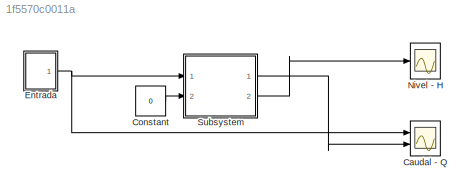
MODEL slx_1f5570c0011a
KIND model
CONFIG AbsTol = auto
CONFIG EnableMultiTasking = on
CONFIG FixedStep = auto
CONFIG MaxStep = auto
CONFIG MinStep = auto
CONFIG RelTol = 1e-3
CONFIG SampleTimeConstraint = Unconstrained
CONFIG Solver = ode23tb
CONFIG SolverName = ode23tb
CONFIG StartTime = 0.0
CONFIG StopTime = 30.0
BLOCK [Scope] Caudal - Q
  Floating = off
  NumInputPorts = 2
  Ports = [2]
  ScopeSpecificationString = Simulink.scopes.TimeScopeBlockCfg('CurrentConfiguration', extmgr.ConfigurationSet(extmgr.Configuration('Core','General UI',true),extmgr.Configuration('Core','Source UI',true),extmgr.Configuration('Sources','WiredSimulink',true,'DataLoggingVariableName','ScopeData1'),extmgr.Configuration('Visuals','Time Domain',true,'SerializedDisplays',{struct('MinYLimReal','-0.11037','MaxYLimReal','0.97482','YLab...<+1413ch>
BLOCK [Constant] Constant
  Value = 0
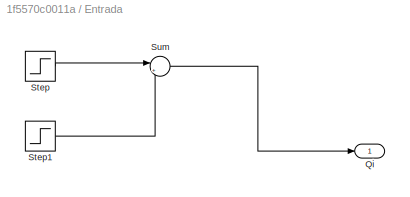
BLOCK [SubSystem] Entrada
  Ports = [0, 1]
  RequestExecContextInheritance = off
BLOCK [Outport] Entrada/Qi
  IconDisplay = Port number
BLOCK [Step] Entrada/Step
  SampleTime = 0
BLOCK [Step] Entrada/Step1
  After = -1
  SampleTime = 0
  Time = 15
BLOCK [Sum] Entrada/Sum
  IconShape = round
  InputSameDT = off
  Inputs = |++
  OutDataTypeStr = Inherit: Inherit via internal rule
  Ports = [2, 1]
  SaturateOnIntegerOverflow = off
BLOCK [Scope] Nivel - H
  Floating = off
  NumInputPorts = 1
  Ports = [1]
  ScopeSpecificationString = Simulink.scopes.TimeScopeBlockCfg('CurrentConfiguration', extmgr.ConfigurationSet(extmgr.Configuration('Core','General UI',true),extmgr.Configuration('Core','Source UI',true),extmgr.Configuration('Sources','WiredSimulink',true,'DataLoggingVariableName','ScopeData1'),extmgr.Configuration('Visuals','Time Domain',true,'SerializedDisplays',{struct('MinYLimReal','-0.11037','MaxYLimReal','0.97482','YLab...<+1413ch>
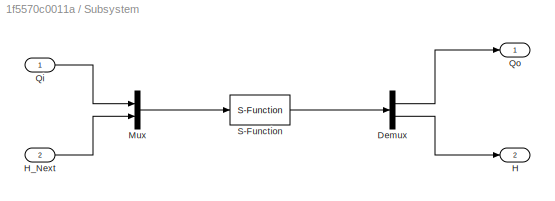
BLOCK [SubSystem] Subsystem
  Ports = [2, 2]
  RequestExecContextInheritance = off
BLOCK [Demux] Subsystem/Demux
  DisplayOption = bar
  Outputs = 2
  Ports = [1, 2]
BLOCK [Outport] Subsystem/H 
  IconDisplay = Port number
  Port = 2
BLOCK [Inport] Subsystem/H_Next
  IconDisplay = Port number
  Port = 2
BLOCK [Mux] Subsystem/Mux
  DisplayOption = bar
  Inputs = 2
  Ports = [2, 1]
BLOCK [Inport] Subsystem/Qi 
  IconDisplay = Port number
BLOCK [Outport] Subsystem/Qo
  IconDisplay = Port number
BLOCK [S-Function] Subsystem/S-Function
  EnableBusSupport = off
  FunctionName = tanque
  Parameters = 1, 1, 1, 0
  Ports = [1, 1]
  SFcnIsStateOwnerBlock = off
  SFunctionDeploymentMode = off
LINE Constant:1 -> Subsystem:2
LINE Entrada/Step1:1 -> Entrada/Sum:2
LINE Entrada/Step:1 -> Entrada/Sum:1
LINE Entrada/Sum:1 -> Entrada/Qi:1
NET Entrada:1 -> Caudal - Q:1, Subsystem:1
LINE Subsystem/Demux:1 -> Subsystem/Qo:1
LINE Subsystem/Demux:2 -> Subsystem/H :1
LINE Subsystem/H_Next:1 -> Subsystem/Mux:2
LINE Subsystem/Mux:1 -> Subsystem/S-Function:1
LINE Subsystem/Qi :1 -> Subsystem/Mux:1
LINE Subsystem/S-Function:1 -> Subsystem/Demux:1
LINE Subsystem:1 -> Caudal - Q:2
LINE Subsystem:2 -> Nivel - H:1
note: NET lines group one-source signal fan-out (src -> all destinations, sorted); 1:1 wires keep LINE
